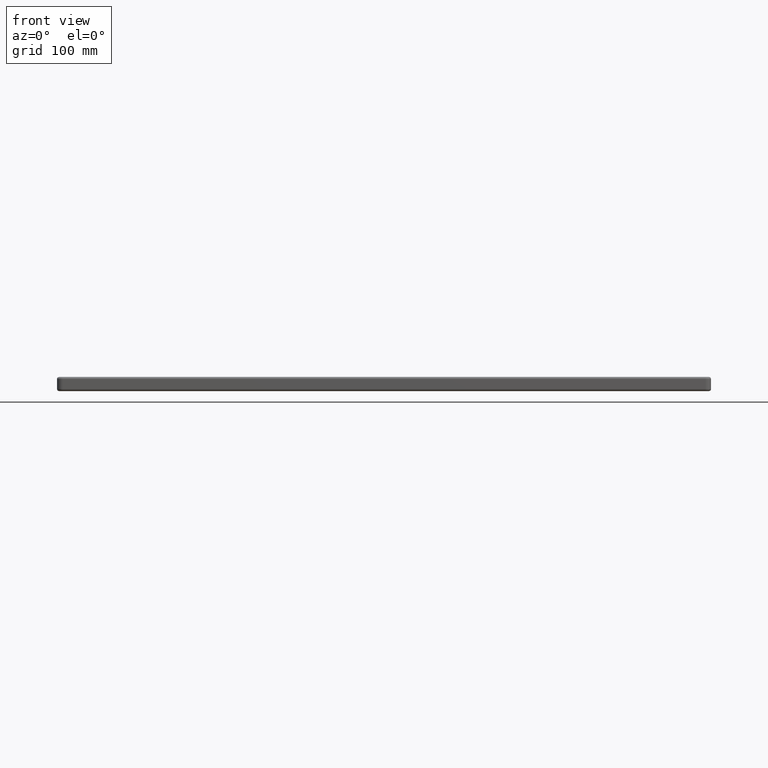
[diagram: clean part render]
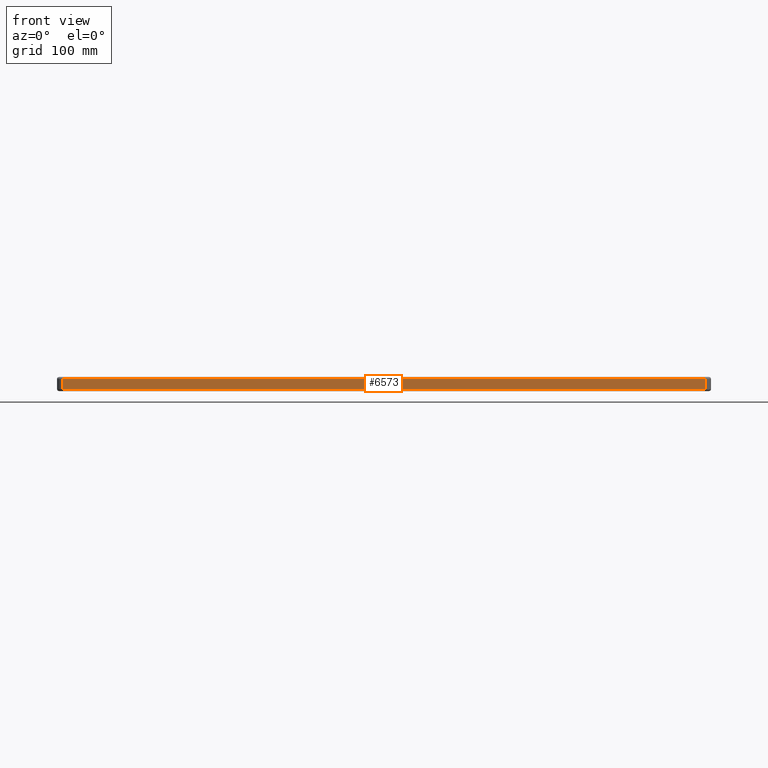
[diagram: same view with one face highlighted and labeled with its STEP entity id]
A machine part, front view. The second image highlights one B-rep face of the part: STEP entity #6573.
In plain terms, the highlighted planar face has unit normal (0, -1, 0).
Its self-contained STEP definition (entity closure, byte-faithful):
#128 = CARTESIAN_POINT ( 'NONE',  ( 0.0000000000000000000, 0.0000000000000000000, -13.00000000000000000 ) ) ;
#430 = AXIS2_PLACEMENT_3D ( 'NONE', #128, #4765, #17578 ) ;
#1207 = VERTEX_POINT ( 'NONE', #9865 ) ;
#1442 = LINE ( 'NONE', #6215, #14687 ) ;
#3249 = DIRECTION ( 'NONE',  ( -0.0000000000000000000, -0.0000000000000000000, -1.000000000000000000 ) ) ;
#4765 = DIRECTION ( 'NONE',  ( 0.0000000000000000000, -1.000000000000000000, 0.0000000000000000000 ) ) ;
#5360 = EDGE_CURVE ( 'NONE', #9028, #13013, #10921, .T. ) ;
#5783 = DIRECTION ( 'NONE',  ( 1.000000000000000000, 0.0000000000000000000, 0.0000000000000000000 ) ) ;
#6215 = CARTESIAN_POINT ( 'NONE',  ( 4.999999999999999100, 0.0000000000000000000, -13.00000000000000000 ) ) ;
#6248 = FACE_OUTER_BOUND ( 'NONE', #9798, .T. ) ;
#6573 = ADVANCED_FACE ( 'NONE', ( #6248 ), #8117, .T. ) ;
#6792 = ORIENTED_EDGE ( 'NONE', *, *, #10033, .T. ) ;
#7876 = VECTOR ( 'NONE', #8142, 1000.000000000000000 ) ;
#8117 = PLANE ( 'NONE',  #430 ) ;
#8142 = DIRECTION ( 'NONE',  ( -0.0000000000000000000, 0.0000000000000000000, 1.000000000000000000 ) ) ;
#8816 = CARTESIAN_POINT ( 'NONE',  ( 0.0000000000000000000, 0.0000000000000000000, -11.00000000000000000 ) ) ;
#9028 = VERTEX_POINT ( 'NONE', #12130 ) ;
#9448 = VECTOR ( 'NONE', #5783, 1000.000000000000000 ) ;
#9798 = EDGE_LOOP ( 'NONE', ( #16734, #20115, #16550, #6792 ) ) ;
#9865 = CARTESIAN_POINT ( 'NONE',  ( 4.999999999999999100, 0.0000000000000000000, -2.000000000000000000 ) ) ;
#10033 = EDGE_CURVE ( 'NONE', #15445, #1207, #19637, .T. ) ;
#10126 = EDGE_CURVE ( 'NONE', #13013, #15445, #10296, .T. ) ;
#10296 = LINE ( 'NONE', #17330, #7876 ) ;
#10921 = LINE ( 'NONE', #8816, #9448 ) ;
#12130 = CARTESIAN_POINT ( 'NONE',  ( 4.999999999999999100, 0.0000000000000000000, -11.00000000000000000 ) ) ;
#13013 = VERTEX_POINT ( 'NONE', #13711 ) ;
#13228 = VECTOR ( 'NONE', #15432, 1000.000000000000000 ) ;
#13711 = CARTESIAN_POINT ( 'NONE',  ( 594.9999999999998900, 0.0000000000000000000, -11.00000000000000000 ) ) ;
#14687 = VECTOR ( 'NONE', #3249, 1000.000000000000000 ) ;
#15432 = DIRECTION ( 'NONE',  ( -1.000000000000000000, -0.0000000000000000000, 0.0000000000000000000 ) ) ;
#15445 = VERTEX_POINT ( 'NONE', #15688 ) ;
#15688 = CARTESIAN_POINT ( 'NONE',  ( 594.9999999999998900, 0.0000000000000000000, -2.000000000000000000 ) ) ;
#16078 = EDGE_CURVE ( 'NONE', #1207, #9028, #1442, .T. ) ;
#16550 = ORIENTED_EDGE ( 'NONE', *, *, #10126, .T. ) ;
#16734 = ORIENTED_EDGE ( 'NONE', *, *, #16078, .T. ) ;
#17061 = CARTESIAN_POINT ( 'NONE',  ( 4.999999999999999100, 0.0000000000000000000, -2.000000000000000000 ) ) ;
#17330 = CARTESIAN_POINT ( 'NONE',  ( 594.9999999999998900, 0.0000000000000000000, -13.00000000000000000 ) ) ;
#17578 = DIRECTION ( 'NONE',  ( 0.0000000000000000000, -0.0000000000000000000, -1.000000000000000000 ) ) ;
#19637 = LINE ( 'NONE', #17061, #13228 ) ;
#20115 = ORIENTED_EDGE ( 'NONE', *, *, #5360, .T. ) ;